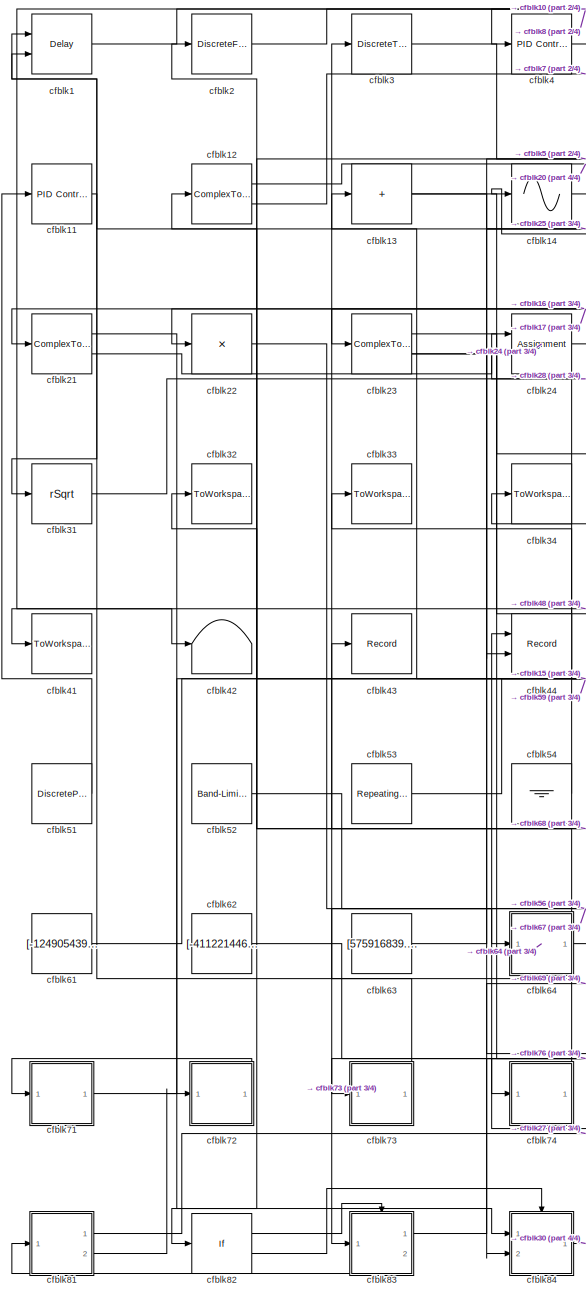
[diagram: root canvas - part 1/4, left side, full height]
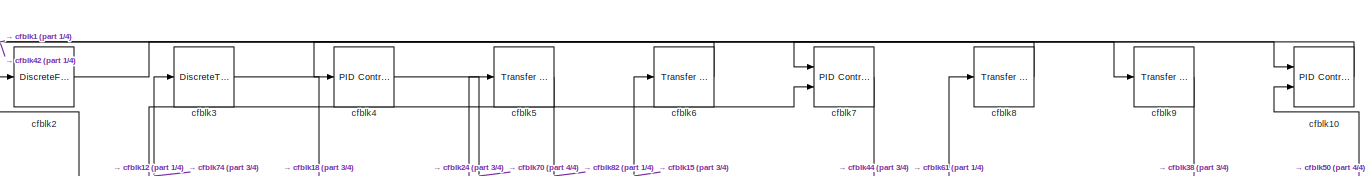
[diagram: root canvas - part 2/4, full width, top band]
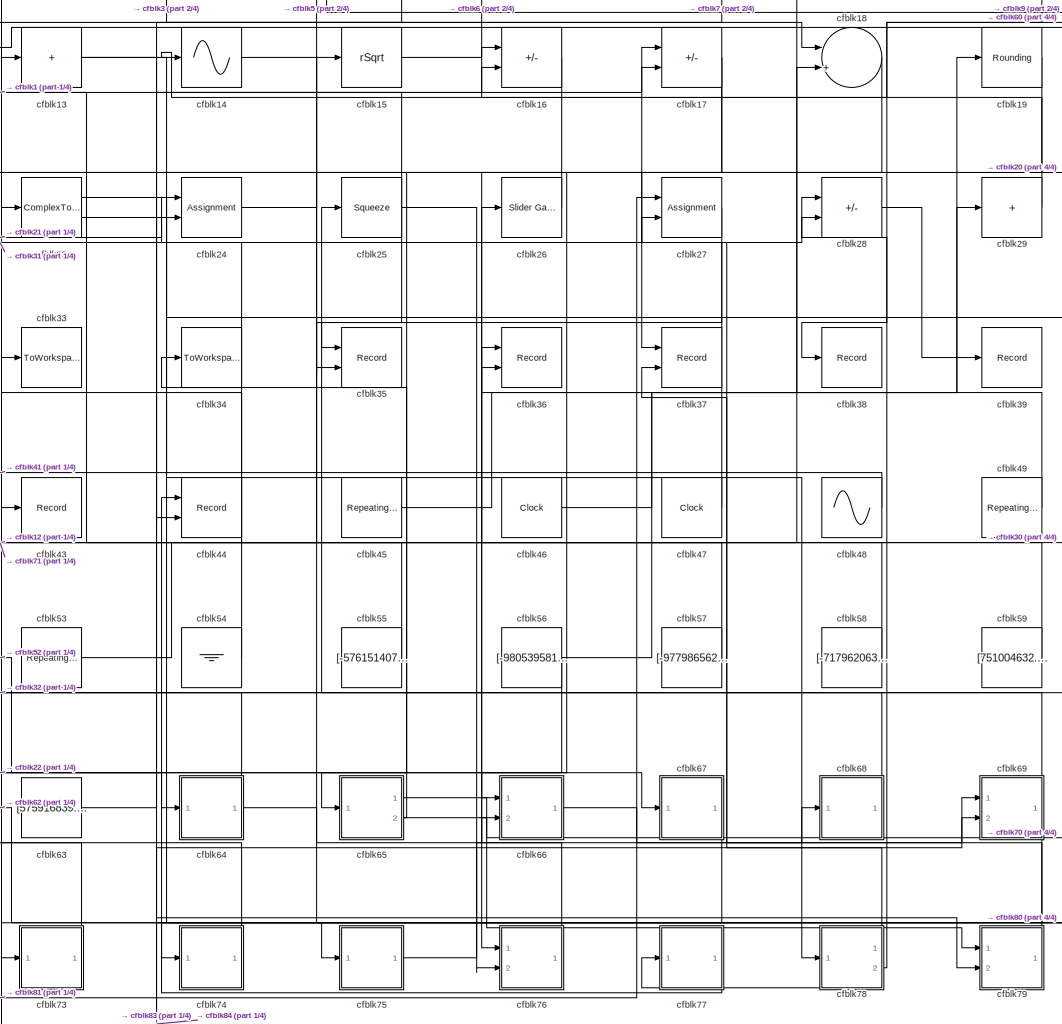
[diagram: root canvas - part 3/4, center side, full height]
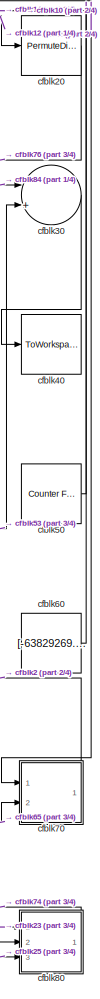
[diagram: root canvas - part 4/4, right side, full height]
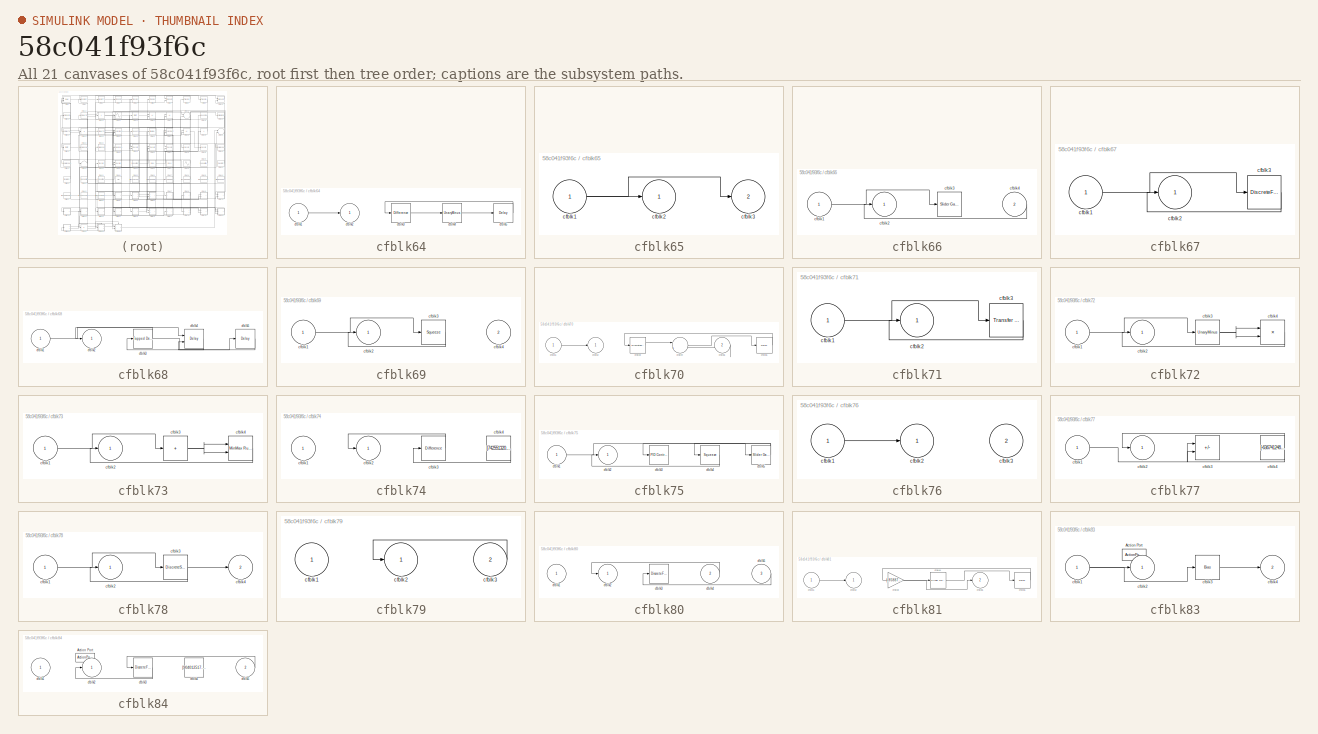
[diagram: thumbnail index - all 21 canvases of the model, root first then tree order]
MODEL slx_58c041f93f6c
KIND model
CONFIG AbsTol = auto
CONFIG EnableMultiTasking = off
CONFIG FixedStep = auto
CONFIG MaxStep = auto
CONFIG MinStep = auto
CONFIG RelTol = 1e-3
CONFIG SampleTimeConstraint = Unconstrained
CONFIG SolverName = VariableStepAuto
CONFIG StartTime = 0.0
CONFIG StopTime = 10.0
BLOCK [Delay] cfblk1
  InputPortMap = u0,e6
  Ports = [2, 1]
  SampleTime = 1
  ShowEnablePort = on
BLOCK [Reference] cfblk10  REF=slpidlib/PID Controller (2DOF)
  Ports = [2, 1]
  SourceBlock = slpidlib/PID Controller (2DOF)
  SourceProductBaseCode = SL
  SourceType = PID 2dof
BLOCK [Reference] cfblk11  REF=slpidlib/PID Controller
  Ports = [1, 1]
  SourceBlock = slpidlib/PID Controller
  SourceProductBaseCode = SL
  SourceType = PID 1dof
BLOCK [ComplexToRealImag] cfblk12
  Ports = [1, 2]
BLOCK [Sum] cfblk13
  IconShape = rectangular
  Inputs = +
  Ports = [1, 1]
BLOCK [Sin] cfblk14
  Ports = [1, 1]
  SampleTime = 0
  TimeSource = Use external signal
BLOCK [Sqrt] cfblk15
  AlgorithmType = Newton-Raphson
  Operator = rSqrt
BLOCK [Sum] cfblk16
  IconShape = rectangular
  Inputs = +-
  Ports = [2, 1]
BLOCK [Sum] cfblk17
  IconShape = rectangular
  Inputs = +-
  Ports = [2, 1]
BLOCK [Sum] cfblk18
  Inputs = |++
  Ports = [2, 1]
BLOCK [Rounding] cfblk19
BLOCK [DiscreteFilter] cfblk2
  InputPortMap = u0
  Ports = [1, 1]
  SampleTime = 1
BLOCK [PermuteDimensions] cfblk20
BLOCK [ComplexToRealImag] cfblk21
  Ports = [1, 2]
BLOCK [Product] cfblk22
  Inputs = *
  Ports = [1, 1]
BLOCK [ComplexToRealImag] cfblk23
  Ports = [1, 2]
BLOCK [Assignment] cfblk24
  DiagnosticForDimensions = Warning
  IndexOptions = Index vector (dialog)
  Indices = 1
  OutputSizes = 1
  Ports = [2, 1]
BLOCK [Squeeze] cfblk25
BLOCK [Reference] cfblk26  REF=simulink/Math
Operations/Slider
Gain
  Ports = [1, 1]
  SourceBlock = simulink/Math\nOperations/Slider\nGain
  SourceProductBaseCode = SL
  SourceType = Slider Gain
BLOCK [Assignment] cfblk27
  DiagnosticForDimensions = Warning
  IndexOptions = Index vector (dialog)
  Indices = 1
  OutputSizes = 1
  Ports = [2, 1]
BLOCK [Sum] cfblk28
  IconShape = rectangular
  Inputs = --
  Ports = [2, 1]
BLOCK [Sum] cfblk29
  IconShape = rectangular
  Inputs = +
  Ports = [1, 1]
BLOCK [DiscreteTransferFcn] cfblk3
  InputPortMap = u0
  Ports = [1, 1]
  SampleTime = 1
BLOCK [Sum] cfblk30
  Inputs = |++
  Ports = [2, 1]
BLOCK [Sqrt] cfblk31
  AlgorithmType = Newton-Raphson
  Operator = rSqrt
BLOCK [ToWorkspace] cfblk32
  FixptAsFi = on
  MaxDataPoints = inf
  Ports = [1]
  SampleTime = -1
  SaveFormat = Timeseries
  VariableName = zgszgia
BLOCK [ToWorkspace] cfblk33
  FixptAsFi = on
  MaxDataPoints = inf
  Ports = [1]
  SampleTime = -1
  SaveFormat = Timeseries
  VariableName = xcqvqzd
BLOCK [ToWorkspace] cfblk34
  FixptAsFi = on
  MaxDataPoints = inf
  Ports = [1]
  SampleTime = -1
  SaveFormat = Timeseries
  VariableName = bndqcqn
BLOCK [Record] cfblk35
  CompatibilityTag = XY
  FileSettingsInternal = {"entries":[{"content":{"excelSettings":{"content":{},"type":"Streamout.ExcelSettings"}},"type":"Streamout.FileSettingStorage","uuid":"7b7ed308-437a-44e1-93b0-119ad1951b0e"}],"packageUris":["http://schema.mathworks.com/mf0/streamout_blocks/R2020a"],"version":"1.0"}
  Layout = [1 1]
  Ports = [2]
  SignalsInternal = {"entries":[{"content":{"signals":[{"content":{"blockPath":["sampleModel289/cfblk35"],"channel":[],"dimensions":[1],"domain":"sampleModel289/cfblk35","lineColor":"#a2142f","plots":[1],"port":1,"sid":[""],"signalID":12304,"signalName":"cfblk25"},"type":"RecordBlkView.Signal","uuid":"3ccd0c71-4842-453a-af03-e350c145101a"},{"content":{"blockPath":["sampleModel289/cfblk35"],"channel":[],"dimensions":[...<+385ch>
  VisualizationBindings = {"xyplotplugin":{"info":[{"series":[{"bindingParametersList":[{"parameter":"X-Axis","signalID":12304,"signalName":"cfblk25"},{"parameter":"Y-Axis","signalID":12308,"signalName":"cfblk27"}],"seriesID":25365}],"subplotID":1}]}}
BLOCK [Record] cfblk36
  CompatibilityTag = XY
  FileSettingsInternal = {"entries":[{"content":{"excelSettings":{"content":{},"type":"Streamout.ExcelSettings"}},"type":"Streamout.FileSettingStorage","uuid":"a03899b7-b243-45d4-9680-b54d85ed6f4b"}],"packageUris":["http://schema.mathworks.com/mf0/streamout_blocks/R2020a"],"version":"1.0"}
  Layout = [1 1]
  Ports = [2]
  SignalsInternal = {"entries":[{"content":{"signals":[{"content":{"blockPath":["sampleModel289/cfblk36"],"channel":[],"dimensions":[1],"domain":"sampleModel289/cfblk36","lineColor":"#a2142f","plots":[1],"port":1,"sid":[""],"signalID":12340,"signalName":"cfblk49"},"type":"RecordBlkView.Signal","uuid":"5afefa44-cd17-4c3a-834a-a48b47bbd888"},{"content":{"blockPath":["sampleModel289/cfblk36"],"channel":[],"dimensions":[...<+385ch>
  VisualizationBindings = {"xyplotplugin":{"info":[{"series":[{"bindingParametersList":[{"parameter":"X-Axis","signalID":12340,"signalName":"cfblk49"},{"parameter":"Y-Axis","signalID":12344,"signalName":"cfblk58"}],"seriesID":44749}],"subplotID":1}]}}
BLOCK [Record] cfblk37
  CompatibilityTag = XY
  FileSettingsInternal = {"entries":[{"content":{"excelSettings":{"content":{},"type":"Streamout.ExcelSettings"}},"type":"Streamout.FileSettingStorage","uuid":"e921fc8f-aec5-409d-a555-7d855c63ce1c"}],"packageUris":["http://schema.mathworks.com/mf0/streamout_blocks/R2020a"],"version":"1.0"}
  Layout = [1 1]
  Ports = [2]
  SignalsInternal = {"entries":[{"content":{"signals":[{"content":{"blockPath":["sampleModel289/cfblk37"],"channel":[],"dimensions":[1],"domain":"sampleModel289/cfblk37","lineColor":"#a2142f","plots":[1],"port":1,"sid":[""],"signalID":12312,"signalName":"cfblk19"},"type":"RecordBlkView.Signal","uuid":"2c42da06-6c50-44b8-bacf-65a0104608cc"},{"content":{"blockPath":["sampleModel289/cfblk37"],"channel":[],"dimensions":[...<+389ch>
  VisualizationBindings = {"xyplotplugin":{"info":[{"series":[{"bindingParametersList":[{"parameter":"X-Axis","signalID":12312,"signalName":"cfblk19"},{"parameter":"Y-Axis","signalID":12316,"signalName":"cfblk78:1"}],"seriesID":16667}],"subplotID":1}]}}
BLOCK [Record] cfblk38
  FileSettingsInternal = {"entries":[{"content":{"excelSettings":{"content":{},"type":"Streamout.ExcelSettings"}},"type":"Streamout.FileSettingStorage","uuid":"f2087e49-2efa-4b61-ab03-3184f6fa1e2f"}],"packageUris":["http://schema.mathworks.com/mf0/streamout_blocks/R2020a"],"version":"1.0"}
  Ports = [1]
  SignalsInternal = {"entries":[{"content":{"signals":[{"content":{"blockPath":["sampleModel289/cfblk38"],"channel":[],"dimensions":[1],"domain":"sampleModel289/cfblk38","lineColor":"#ff13a6","plots":[1],"port":1,"sid":[""],"signalID":12320,"signalName":"cfblk9"},"type":"RecordBlkView.Signal","uuid":"a6fa415b-a50a-4b48-93b5-ff9805ec912b"}]},"type":"RecordBlkView.InputSignals","uuid":"ff146aad-66d0-4859-9124-3b13cb08f...<+97ch>
  VisualizationBindings = {"sparklinesplugin":{"info":[{"bindingParametersList":[],"subplotID":1}]}}
BLOCK [Record] cfblk39
  FileSettingsInternal = {"entries":[{"content":{"excelSettings":{"content":{},"type":"Streamout.ExcelSettings"}},"type":"Streamout.FileSettingStorage","uuid":"cf2dfc34-6abf-4c1d-a96e-4f6a20f6e382"}],"packageUris":["http://schema.mathworks.com/mf0/streamout_blocks/R2020a"],"version":"1.0"}
  Ports = [1]
  SignalsInternal = {"entries":[{"content":{"signals":[{"content":{"blockPath":["sampleModel289/cfblk39"],"channel":[],"dimensions":[1,1],"domain":"sampleModel289/cfblk39","lineColor":"#fe330a","plots":[1],"port":1,"sid":[""],"signalID":12324,"signalName":"cfblk28"},"type":"RecordBlkView.Signal","uuid":"1b178156-9387-4417-8ba8-0ff766d1c67a"}]},"type":"RecordBlkView.InputSignals","uuid":"bb77c033-f15c-4feb-924d-bc6f62...<+100ch>
  VisualizationBindings = {"sparklinesplugin":{"info":[{"bindingParametersList":[],"subplotID":1}]}}
BLOCK [Reference] cfblk4  REF=slpidlib/PID Controller
  Ports = [1, 1]
  SourceBlock = slpidlib/PID Controller
  SourceProductBaseCode = SL
  SourceType = PID 1dof
BLOCK [ToWorkspace] cfblk40
  FixptAsFi = on
  MaxDataPoints = inf
  Ports = [1]
  SampleTime = -1
  SaveFormat = Timeseries
  VariableName = qnzssez
BLOCK [ToWorkspace] cfblk41
  FixptAsFi = on
  MaxDataPoints = inf
  Ports = [1]
  SampleTime = -1
  SaveFormat = Timeseries
  VariableName = xmlsoys
BLOCK [Terminator] cfblk42
BLOCK [Record] cfblk43
  FileSettingsInternal = {"entries":[{"content":{"excelSettings":{"content":{},"type":"Streamout.ExcelSettings"}},"type":"Streamout.FileSettingStorage","uuid":"2ea60b81-a654-4b0c-81ed-ff0b73af3fbb"}],"packageUris":["http://schema.mathworks.com/mf0/streamout_blocks/R2020a"],"version":"1.0"}
  Ports = [1]
  SignalsInternal = {"entries":[{"content":{"signals":[{"content":{"blockPath":["sampleModel289/cfblk43"],"channel":[],"dimensions":[1],"domain":"sampleModel289/cfblk43","lineColor":"#22b573","plots":[1],"port":1,"sid":[""],"signalID":12328,"signalName":"cfblk64"},"type":"RecordBlkView.Signal","uuid":"7378ba9a-2ca8-4225-a342-90f4cd701577"}]},"type":"RecordBlkView.InputSignals","uuid":"a81eeb95-de85-4bc0-b39b-61980a67...<+98ch>
  VisualizationBindings = {"sparklinesplugin":{"info":[{"bindingParametersList":[],"subplotID":1}]}}
BLOCK [Record] cfblk44
  CompatibilityTag = XY
  FileSettingsInternal = {"entries":[{"content":{"excelSettings":{"content":{},"type":"Streamout.ExcelSettings"}},"type":"Streamout.FileSettingStorage","uuid":"cadf4045-9bae-4cca-a503-882c97b9e424"}],"packageUris":["http://schema.mathworks.com/mf0/streamout_blocks/R2020a"],"version":"1.0"}
  Layout = [1 1]
  Ports = [2]
  SignalsInternal = {"entries":[{"content":{"signals":[{"content":{"blockPath":["sampleModel289/cfblk44"],"channel":[],"dimensions":[1],"domain":"sampleModel289/cfblk44","lineColor":"#a2142f","plots":[1],"port":1,"sid":[""],"signalID":12332,"signalName":"cfblk77"},"type":"RecordBlkView.Signal","uuid":"198b7052-c0f9-4857-8f35-cafdaaa02196"},{"content":{"blockPath":["sampleModel289/cfblk44"],"channel":[],"dimensions":[...<+384ch>
  VisualizationBindings = {"xyplotplugin":{"info":[{"series":[{"bindingParametersList":[{"parameter":"X-Axis","signalID":12332,"signalName":"cfblk77"},{"parameter":"Y-Axis","signalID":12336,"signalName":"cfblk7"}],"seriesID":48812}],"subplotID":1}]}}
BLOCK [Reference] cfblk45  REF=simulink/Sources/Repeating
Sequence
Interpolated
  Ports = [0, 1]
  SourceBlock = simulink/Sources/Repeating\nSequence\nInterpolated
  SourceProductBaseCode = SL
  SourceType = Repeating Sequence Interpolated
BLOCK [Clock] cfblk46
BLOCK [Clock] cfblk47
BLOCK [Sin] cfblk48
  Amplitude = [-836803458.629363]
  Bias = [175322299.318292]
  Ports = [0, 1]
  SampleTime = 0
BLOCK [Reference] cfblk49  REF=simulink/Sources/Repeating
Sequence
Stair
  Ports = [0, 1]
  SourceBlock = simulink/Sources/Repeating\nSequence\nStair
  SourceProductBaseCode = SL
  SourceType = Repeating Sequence Stair
BLOCK [Reference] cfblk5  REF=simulink/Discrete/Transfer Fcn
First Order
  Ports = [1, 1]
  SourceBlock = simulink/Discrete/Transfer Fcn\nFirst Order
  SourceProductBaseCode = SL
  SourceType = First Order Transfer Fcn
BLOCK [Reference] cfblk50  REF=simulink/Sources/Counter
Free-Running
  Ports = [0, 1]
  SourceBlock = simulink/Sources/Counter\nFree-Running
  SourceProductBaseCode = SL
  SourceType = Counter Free-Running
BLOCK [DiscretePulseGenerator] cfblk51
  Amplitude = [-881095255.761868]
  Period = [23344976.274243]
  PhaseDelay = [7.000000]
  Ports = [0, 1]
  PulseType = Time based
  PulseWidth = 5
BLOCK [Reference] cfblk52  REF=simulink/Sources/Band-Limited
White Noise
  Ports = [0, 1]
  SourceBlock = simulink/Sources/Band-Limited\nWhite Noise
  SourceProductBaseCode = SL
  SourceType = Band-Limited White Noise.
BLOCK [Reference] cfblk53  REF=simulink/Sources/Repeating
Sequence
Stair
  Ports = [0, 1]
  SourceBlock = simulink/Sources/Repeating\nSequence\nStair
  SourceProductBaseCode = SL
  SourceType = Repeating Sequence Stair
BLOCK [Ground] cfblk54
BLOCK [Constant] cfblk55
  SampleTime = 1
  Value = [-576151407.306727]
BLOCK [Constant] cfblk56
  SampleTime = 1
  Value = [-980539581.863717]
BLOCK [Constant] cfblk57
  SampleTime = 1
  Value = [-977986562.779290]
BLOCK [Constant] cfblk58
  SampleTime = 1
  Value = [-717962063.022466]
BLOCK [Constant] cfblk59
  SampleTime = 1
  Value = [751004632.601947]
BLOCK [Reference] cfblk6  REF=simulink/Discrete/Transfer Fcn
Lead or Lag
  Ports = [1, 1]
  SourceBlock = simulink/Discrete/Transfer Fcn\nLead or Lag
  SourceProductBaseCode = SL
  SourceType = Lead or Lag Compensator
BLOCK [Constant] cfblk60
  SampleTime = 1
  Value = [-63829269.905358]
BLOCK [Constant] cfblk61
  SampleTime = 1
  Value = [-124905439.945705]
BLOCK [Constant] cfblk62
  SampleTime = 1
  Value = [-411221446.336861]
BLOCK [Constant] cfblk63
  SampleTime = 1
  Value = [575916839.828256]
BLOCK [SubSystem] cfblk64
  Ports = [1, 1]
  RequestExecContextInheritance = off
BLOCK [Inport] cfblk64/cfblk1
BLOCK [Outport] cfblk64/cfblk2
BLOCK [Reference] cfblk64/cfblk3  REF=simulink/Discrete/Difference
  Ports = [1, 1]
  SourceBlock = simulink/Discrete/Difference
  SourceProductBaseCode = SL
  SourceType = Difference
BLOCK [UnaryMinus] cfblk64/cfblk4
BLOCK [Delay] cfblk64/cfblk5
  InputPortMap = u0
  Ports = [1, 1]
  SampleTime = 1
BLOCK [SubSystem] cfblk65
  Ports = [1, 2]
  RequestExecContextInheritance = off
BLOCK [Inport] cfblk65/cfblk1
BLOCK [Outport] cfblk65/cfblk2
BLOCK [Outport] cfblk65/cfblk3
  Port = 2
BLOCK [SubSystem] cfblk66
  Ports = [2, 1]
  RequestExecContextInheritance = off
BLOCK [Inport] cfblk66/cfblk1
BLOCK [Outport] cfblk66/cfblk2
BLOCK [Reference] cfblk66/cfblk3  REF=simulink/Math
Operations/Slider
Gain
  Ports = [1, 1]
  SourceBlock = simulink/Math\nOperations/Slider\nGain
  SourceProductBaseCode = SL
  SourceType = Slider Gain
BLOCK [Inport] cfblk66/cfblk4
  Port = 2
BLOCK [SubSystem] cfblk67
  Ports = [1, 1]
  RequestExecContextInheritance = off
BLOCK [Inport] cfblk67/cfblk1
BLOCK [Outport] cfblk67/cfblk2
BLOCK [DiscreteFilter] cfblk67/cfblk3
  InputPortMap = u0
  Ports = [1, 1]
  SampleTime = 1
BLOCK [SubSystem] cfblk68
  Ports = [1, 1]
  RequestExecContextInheritance = off
BLOCK [Inport] cfblk68/cfblk1
BLOCK [Outport] cfblk68/cfblk2
BLOCK [Reference] cfblk68/cfblk3  REF=simulink/Discrete/Tapped Delay
  Ports = [1, 1]
  SourceBlock = simulink/Discrete/Tapped Delay
  SourceProductBaseCode = SL
  SourceType = Tapped Delay Line
BLOCK [Delay] cfblk68/cfblk4
  InputPortMap = u0,e6
  Ports = [2, 1]
  SampleTime = 1
  ShowEnablePort = on
BLOCK [Delay] cfblk68/cfblk5
  InputPortMap = u0
  Ports = [1, 1]
  SampleTime = 1
BLOCK [SubSystem] cfblk69
  Ports = [2, 1]
  RequestExecContextInheritance = off
BLOCK [Inport] cfblk69/cfblk1
BLOCK [Outport] cfblk69/cfblk2
BLOCK [Squeeze] cfblk69/cfblk3
BLOCK [Inport] cfblk69/cfblk4
  Port = 2
BLOCK [Reference] cfblk7  REF=slpidlib/PID Controller (2DOF)
  Ports = [2, 1]
  SourceBlock = slpidlib/PID Controller (2DOF)
  SourceProductBaseCode = SL
  SourceType = PID 2dof
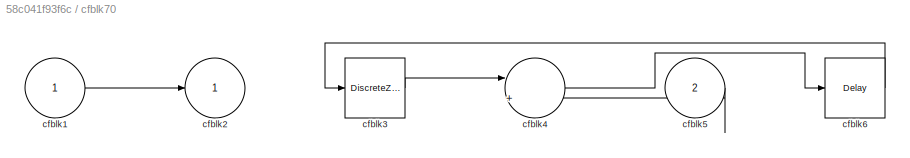
BLOCK [SubSystem] cfblk70
  Ports = [2, 1]
  RequestExecContextInheritance = off
BLOCK [Inport] cfblk70/cfblk1
BLOCK [Outport] cfblk70/cfblk2
BLOCK [DiscreteZeroPole] cfblk70/cfblk3
  Gain = 1
  Poles = [0 0.5]
BLOCK [Sum] cfblk70/cfblk4
  Inputs = |++
  Ports = [2, 1]
BLOCK [Inport] cfblk70/cfblk5
  Port = 2
BLOCK [Delay] cfblk70/cfblk6
  InputPortMap = u0
  Ports = [1, 1]
  SampleTime = 1
BLOCK [SubSystem] cfblk71
  Ports = [1, 1]
  RequestExecContextInheritance = off
BLOCK [Inport] cfblk71/cfblk1
BLOCK [Outport] cfblk71/cfblk2
BLOCK [Reference] cfblk71/cfblk3  REF=simulink/Discrete/Transfer Fcn
First Order
  Ports = [1, 1]
  SourceBlock = simulink/Discrete/Transfer Fcn\nFirst Order
  SourceProductBaseCode = SL
  SourceType = First Order Transfer Fcn
BLOCK [SubSystem] cfblk72
  Ports = [1, 1]
  RequestExecContextInheritance = off
BLOCK [Inport] cfblk72/cfblk1
BLOCK [Outport] cfblk72/cfblk2
BLOCK [UnaryMinus] cfblk72/cfblk3
BLOCK [Product] cfblk72/cfblk4
  Ports = [2, 1]
BLOCK [SubSystem] cfblk73
  Ports = [1, 1]
  RequestExecContextInheritance = off
BLOCK [Inport] cfblk73/cfblk1
BLOCK [Outport] cfblk73/cfblk2
BLOCK [Sum] cfblk73/cfblk3
  IconShape = rectangular
  Inputs = +
  Ports = [1, 1]
BLOCK [Reference] cfblk73/cfblk4  REF=simulink/Math
Operations/MinMax
Running
Resettable
  Ports = [2, 1]
  SourceBlock = simulink/Math\nOperations/MinMax\nRunning\nResettable
  SourceProductBaseCode = SL
  SourceType = MinMax Running Resettable
BLOCK [SubSystem] cfblk74
  Ports = [1, 1]
  RequestExecContextInheritance = off
BLOCK [Inport] cfblk74/cfblk1
BLOCK [Outport] cfblk74/cfblk2
BLOCK [Reference] cfblk74/cfblk3  REF=simulink/Discrete/Difference
  Ports = [1, 1]
  SourceBlock = simulink/Discrete/Difference
  SourceProductBaseCode = SL
  SourceType = Difference
BLOCK [Constant] cfblk74/cfblk4
  SampleTime = 1
  Value = [742551320.821632]
BLOCK [SubSystem] cfblk75
  Ports = [1, 1]
  RequestExecContextInheritance = off
BLOCK [Inport] cfblk75/cfblk1
BLOCK [Outport] cfblk75/cfblk2
BLOCK [Reference] cfblk75/cfblk3  REF=slpidlib/PID Controller
  Ports = [1, 1]
  SourceBlock = slpidlib/PID Controller
  SourceProductBaseCode = SL
  SourceType = PID 1dof
BLOCK [Squeeze] cfblk75/cfblk4
BLOCK [Reference] cfblk75/cfblk5  REF=simulink/Math
Operations/Slider
Gain
  Ports = [1, 1]
  SourceBlock = simulink/Math\nOperations/Slider\nGain
  SourceProductBaseCode = SL
  SourceType = Slider Gain
BLOCK [SubSystem] cfblk76
  Ports = [2, 1]
  RequestExecContextInheritance = off
BLOCK [Inport] cfblk76/cfblk1
BLOCK [Outport] cfblk76/cfblk2
BLOCK [Inport] cfblk76/cfblk3
  Port = 2
BLOCK [SubSystem] cfblk77
  Ports = [1, 1]
  RequestExecContextInheritance = off
BLOCK [Inport] cfblk77/cfblk1
BLOCK [Outport] cfblk77/cfblk2
BLOCK [Sum] cfblk77/cfblk3
  IconShape = rectangular
  Inputs = +-
  Ports = [2, 1]
BLOCK [Constant] cfblk77/cfblk4
  SampleTime = 1
  Value = [-636741248.370445]
BLOCK [SubSystem] cfblk78
  Ports = [1, 2]
  RequestExecContextInheritance = off
BLOCK [Inport] cfblk78/cfblk1
BLOCK [Outport] cfblk78/cfblk2
BLOCK [DiscreteStateSpace] cfblk78/cfblk3
BLOCK [Outport] cfblk78/cfblk4
  Port = 2
BLOCK [SubSystem] cfblk79
  Ports = [2, 1]
  RequestExecContextInheritance = off
BLOCK [Inport] cfblk79/cfblk1
BLOCK [Outport] cfblk79/cfblk2
BLOCK [Inport] cfblk79/cfblk3
  Port = 2
BLOCK [Reference] cfblk8  REF=simulink/Discrete/Transfer Fcn
Lead or Lag
  Ports = [1, 1]
  SourceBlock = simulink/Discrete/Transfer Fcn\nLead or Lag
  SourceProductBaseCode = SL
  SourceType = Lead or Lag Compensator
BLOCK [SubSystem] cfblk80
  Ports = [3, 1]
  RequestExecContextInheritance = off
BLOCK [Inport] cfblk80/cfblk1
BLOCK [Outport] cfblk80/cfblk2
BLOCK [DiscreteFir] cfblk80/cfblk3
  InputPortMap = u0
  OutputPortMap = o0
  Ports = [1, 1]
  SampleTime = 1
BLOCK [Inport] cfblk80/cfblk4
  Port = 2
BLOCK [Inport] cfblk80/cfblk5
  Port = 3
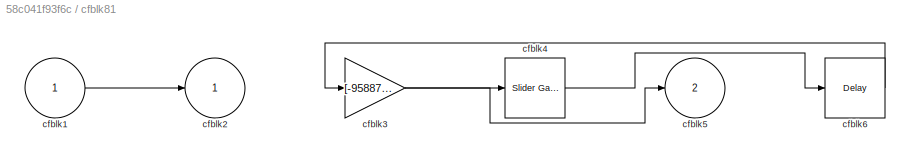
BLOCK [SubSystem] cfblk81
  Ports = [1, 2]
  RequestExecContextInheritance = off
BLOCK [Inport] cfblk81/cfblk1
BLOCK [Outport] cfblk81/cfblk2
BLOCK [Gain] cfblk81/cfblk3
  Gain = [-95887777.353557]
BLOCK [Reference] cfblk81/cfblk4  REF=simulink/Math
Operations/Slider
Gain
  Ports = [1, 1]
  SourceBlock = simulink/Math\nOperations/Slider\nGain
  SourceProductBaseCode = SL
  SourceType = Slider Gain
BLOCK [Outport] cfblk81/cfblk5
  Port = 2
BLOCK [Delay] cfblk81/cfblk6
  InputPortMap = u0
  Ports = [1, 1]
  SampleTime = 1
BLOCK [If] cfblk82
  IfExpression = u1 >= 0
  Ports = [1, 2]
  SampleTime = 1
BLOCK [SubSystem] cfblk83
  Ports = [1, 2, 0, 0, 0, 0, 0, 1]
  RequestExecContextInheritance = off
  TreatAsAtomicUnit = on
BLOCK [ActionPort] cfblk83/Action Port
  ActionPortLabel = if(u1 >= 0)
BLOCK [Inport] cfblk83/cfblk1
BLOCK [Outport] cfblk83/cfblk2
BLOCK [Bias] cfblk83/cfblk3
  Bias = [-565139019.946457]
  SaturateOnIntegerOverflow = off
BLOCK [Outport] cfblk83/cfblk4
  Port = 2
BLOCK [SubSystem] cfblk84
  Ports = [2, 1, 0, 0, 0, 0, 0, 1]
  RequestExecContextInheritance = off
  TreatAsAtomicUnit = on
BLOCK [ActionPort] cfblk84/Action Port
  ActionPortLabel = else
BLOCK [Inport] cfblk84/cfblk1
BLOCK [Outport] cfblk84/cfblk2
BLOCK [DiscreteFilter] cfblk84/cfblk3
  InputPortMap = u0
  Ports = [1, 1]
BLOCK [Constant] cfblk84/cfblk4
  SampleTime = 1
  Value = [904012517.353100]
BLOCK [Inport] cfblk84/cfblk5
  Port = 2
BLOCK [Reference] cfblk9  REF=simulink/Discrete/Transfer Fcn
Real Zero
  Ports = [1, 1]
  SourceBlock = simulink/Discrete/Transfer Fcn\nReal Zero
  SourceProductBaseCode = SL
  SourceType = Transfer Fcn Real Zero
LINE cfblk10:1 -> cfblk7:1
LINE cfblk11:1 -> cfblk31:1
LINE cfblk12:1 -> cfblk20:1
LINE cfblk12:2 -> cfblk7:2
NET cfblk13:1 -> cfblk16:2, cfblk75:1
LINE cfblk14:1 -> cfblk80:2
LINE cfblk15:1 -> cfblk6:1
LINE cfblk16:1 -> cfblk22:1
NET cfblk17:1 -> cfblk21:1, cfblk66:1
LINE cfblk18:1 -> cfblk65:1
LINE cfblk19:1 -> cfblk37:1
LINE cfblk1:1 -> cfblk10:1
LINE cfblk20:1 -> cfblk76:1
LINE cfblk21:1 -> cfblk84:1
LINE cfblk21:2 -> cfblk24:2
LINE cfblk22:1 -> cfblk64:1
LINE cfblk23:1 -> cfblk78:1
NET cfblk23:2 -> cfblk79:2, cfblk80:1
LINE cfblk24:1 -> cfblk5:1
NET cfblk25:1 -> cfblk1:2, cfblk35:1, cfblk80:3
LINE cfblk26:1 -> cfblk23:1
LINE cfblk27:1 -> cfblk35:2
LINE cfblk28:1 -> cfblk39:1
LINE cfblk29:1 -> cfblk16:1
LINE cfblk2:1 -> cfblk9:1
LINE cfblk30:1 -> cfblk40:1
LINE cfblk31:1 -> cfblk28:1
LINE cfblk3:1 -> cfblk18:1
LINE cfblk45:1 -> cfblk29:1
LINE cfblk46:1 -> cfblk19:1
LINE cfblk47:1 -> cfblk17:1
LINE cfblk48:1 -> cfblk41:1
LINE cfblk49:1 -> cfblk36:1
LINE cfblk4:1 -> cfblk70:1
LINE cfblk50:1 -> cfblk10:2
LINE cfblk51:1 -> cfblk11:1
LINE cfblk52:1 -> cfblk67:1
LINE cfblk53:1 -> cfblk30:2
LINE cfblk54:1 -> cfblk33:1
LINE cfblk55:1 -> cfblk24:1
NET cfblk56:1 -> cfblk18:2, cfblk83:1
LINE cfblk57:1 -> cfblk13:1
LINE cfblk58:1 -> cfblk36:2
LINE cfblk59:1 -> cfblk12:1
LINE cfblk5:1 -> cfblk82:1
LINE cfblk60:1 -> cfblk14:1
LINE cfblk61:1 -> cfblk8:1
LINE cfblk62:1 -> cfblk76:2
LINE cfblk63:1 -> cfblk17:2
LINE cfblk64/cfblk1:1 -> cfblk64/cfblk2:1
LINE cfblk64/cfblk3:1 -> cfblk64/cfblk4:1
LINE cfblk64/cfblk4:1 -> cfblk64/cfblk5:1
LINE cfblk64/cfblk5:1 -> cfblk64/cfblk3:1
NET cfblk64:1 -> cfblk43:1, cfblk66:2
NET cfblk65/cfblk1:1 -> cfblk65/cfblk2:1, cfblk65/cfblk3:1
LINE cfblk65:1 -> cfblk79:1
NET cfblk65:2 -> cfblk34:1, cfblk70:2
LINE cfblk66/cfblk1:1 -> cfblk66/cfblk3:1
LINE cfblk66/cfblk4:1 -> cfblk66/cfblk2:1
LINE cfblk66:1 -> cfblk69:2
LINE cfblk67/cfblk1:1 -> cfblk67/cfblk3:1
LINE cfblk67/cfblk3:1 -> cfblk67/cfblk2:1
LINE cfblk67:1 -> cfblk84:2
LINE cfblk68/cfblk1:1 -> cfblk68/cfblk4:1
NET cfblk68/cfblk3:1 -> cfblk68/cfblk2:1, cfblk68/cfblk5:1
LINE cfblk68/cfblk4:1 -> cfblk68/cfblk3:1
LINE cfblk68/cfblk5:1 -> cfblk68/cfblk4:2
LINE cfblk68:1 -> cfblk32:1
LINE cfblk69/cfblk1:1 -> cfblk69/cfblk3:1
LINE cfblk69/cfblk3:1 -> cfblk69/cfblk2:1
NET cfblk69:1 -> cfblk25:1, cfblk73:1
LINE cfblk6:1 -> cfblk4:1
LINE cfblk70/cfblk1:1 -> cfblk70/cfblk2:1
LINE cfblk70/cfblk3:1 -> cfblk70/cfblk4:1
LINE cfblk70/cfblk4:1 -> cfblk70/cfblk6:1
LINE cfblk70/cfblk5:1 -> cfblk70/cfblk4:2
LINE cfblk70/cfblk6:1 -> cfblk70/cfblk3:1
LINE cfblk70:1 -> cfblk2:1
LINE cfblk71/cfblk1:1 -> cfblk71/cfblk3:1
LINE cfblk71/cfblk3:1 -> cfblk71/cfblk2:1
LINE cfblk71:1 -> cfblk15:1
LINE cfblk72/cfblk1:1 -> cfblk72/cfblk3:1
NET cfblk72/cfblk3:1 -> cfblk72/cfblk4:1, cfblk72/cfblk4:2
LINE cfblk72/cfblk4:1 -> cfblk72/cfblk2:1
LINE cfblk72:1 -> cfblk71:1
LINE cfblk73/cfblk1:1 -> cfblk73/cfblk3:1
NET cfblk73/cfblk3:1 -> cfblk73/cfblk4:1, cfblk73/cfblk4:2
LINE cfblk73/cfblk4:1 -> cfblk73/cfblk2:1
LINE cfblk73:1 -> cfblk1:1
LINE cfblk74/cfblk3:1 -> cfblk74/cfblk2:1
LINE cfblk74/cfblk4:1 -> cfblk74/cfblk3:1
LINE cfblk74:1 -> cfblk3:1
LINE cfblk75/cfblk1:1 -> cfblk75/cfblk5:1
LINE cfblk75/cfblk4:1 -> cfblk75/cfblk2:1
NET cfblk75/cfblk5:1 -> cfblk75/cfblk3:1, cfblk75/cfblk4:1
LINE cfblk75:1 -> cfblk68:1
LINE cfblk76/cfblk1:1 -> cfblk76/cfblk2:1
LINE cfblk76:1 -> cfblk26:1
LINE cfblk77/cfblk1:1 -> cfblk77/cfblk3:1
NET cfblk77/cfblk4:1 -> cfblk77/cfblk2:1, cfblk77/cfblk3:2
LINE cfblk77:1 -> cfblk44:1
LINE cfblk78/cfblk1:1 -> cfblk78/cfblk3:1
NET cfblk78/cfblk3:1 -> cfblk78/cfblk2:1, cfblk78/cfblk4:1
LINE cfblk78:1 -> cfblk37:2
NET cfblk78:2 -> cfblk28:2, cfblk77:1
LINE cfblk79/cfblk3:1 -> cfblk79/cfblk2:1
LINE cfblk79:1 -> cfblk27:2
LINE cfblk7:1 -> cfblk44:2
LINE cfblk80/cfblk4:1 -> cfblk80/cfblk2:1
LINE cfblk80/cfblk5:1 -> cfblk80/cfblk3:1
LINE cfblk80:1 -> cfblk74:1
LINE cfblk81/cfblk1:1 -> cfblk81/cfblk2:1
NET cfblk81/cfblk3:1 -> cfblk81/cfblk4:1, cfblk81/cfblk5:1
LINE cfblk81/cfblk4:1 -> cfblk81/cfblk6:1
LINE cfblk81/cfblk6:1 -> cfblk81/cfblk3:1
LINE cfblk81:1 -> cfblk27:1
LINE cfblk81:2 -> cfblk72:1
LINE cfblk82:1 -> cfblk83:ifaction
LINE cfblk82:2 -> cfblk84:ifaction
NET cfblk83/cfblk1:1 -> cfblk83/cfblk2:1, cfblk83/cfblk3:1
LINE cfblk83/cfblk3:1 -> cfblk83/cfblk4:1
LINE cfblk83:1 -> cfblk69:1
LINE cfblk83:2 -> cfblk81:1
LINE cfblk84/cfblk3:1 -> cfblk84/cfblk2:1
LINE cfblk84/cfblk5:1 -> cfblk84/cfblk3:1
LINE cfblk84:1 -> cfblk30:1
LINE cfblk8:1 -> cfblk42:1
LINE cfblk9:1 -> cfblk38:1
note: NET lines group one-source signal fan-out (src -> all destinations, sorted); 1:1 wires keep LINE
